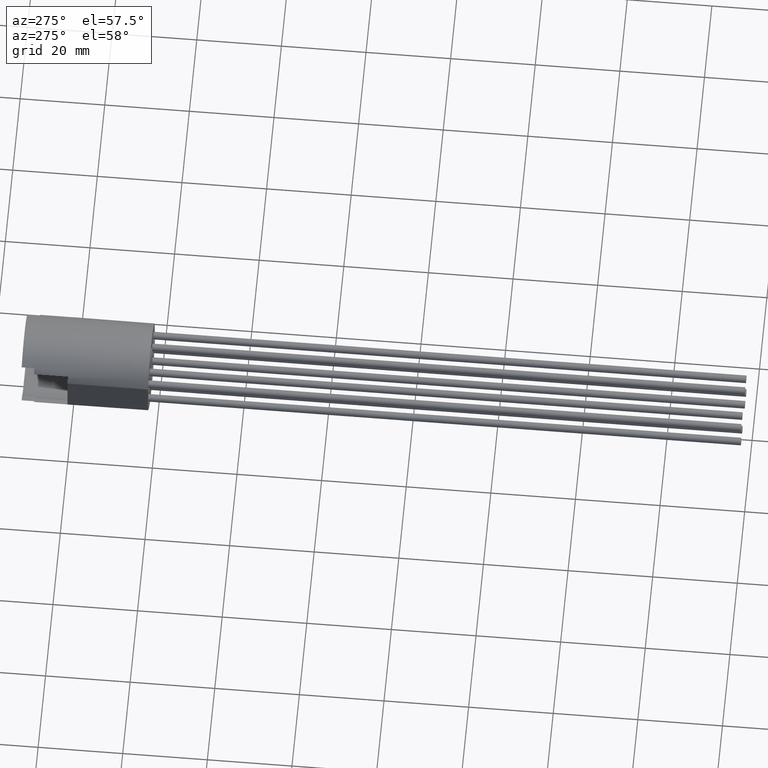
[diagram: clean part render]
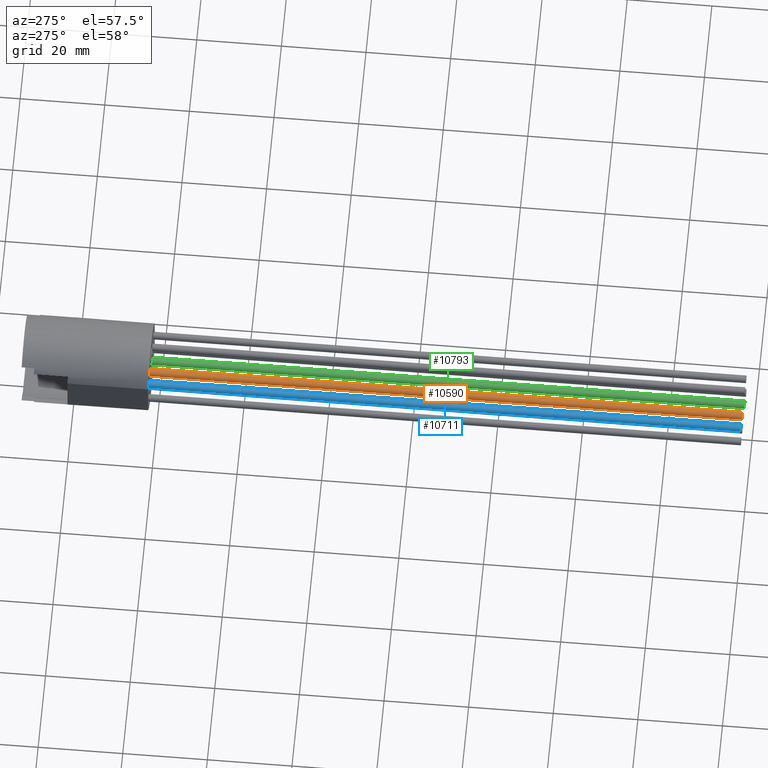
[diagram: same view with three faces highlighted in distinct colors, each labeled with its STEP entity id]
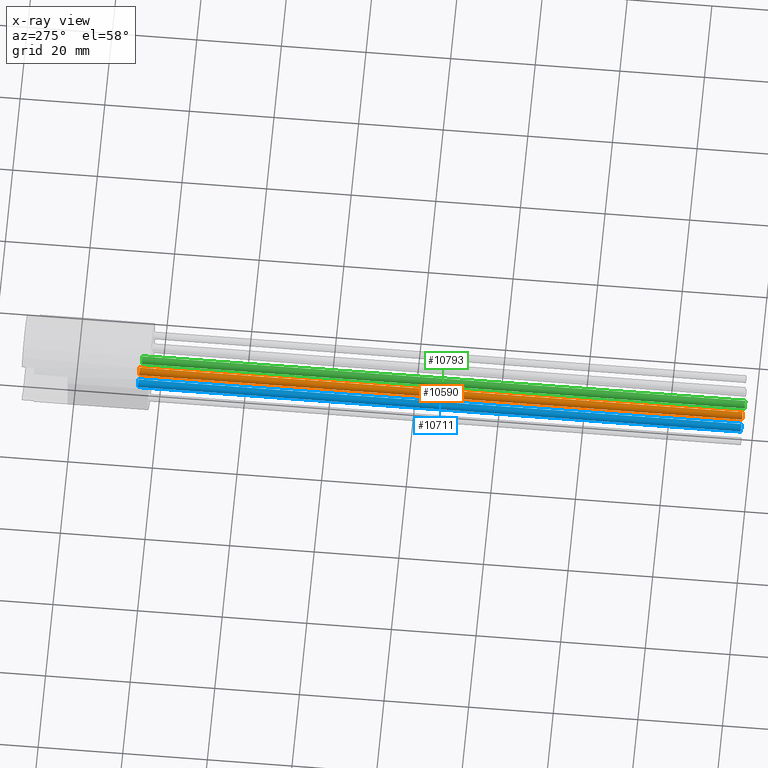
[diagram: x-ray of the same camera — body ghosted, the three highlighted faces saturated]
A machine part, auxiliary view with three faces highlighted in distinct colors.
The next image is the same camera in x-ray (body ghosted, the three faces saturated) — at least one of them is partly hidden behind the body in this view.
Their STEP definitions:

[orange] entity #10590 — the highlighted cylindrical surface (bore or boss wall) has radius 0.9 mm, axis along (0, 1, 0).
#128=CYLINDRICAL_SURFACE('',#11247,0.9);
#293=CIRCLE('',#11240,0.9);
#294=CIRCLE('',#11241,0.9);
#299=CIRCLE('',#11248,0.9);
#300=CIRCLE('',#11249,0.9);
#802=FACE_OUTER_BOUND('',#1372,.T.);
#1372=EDGE_LOOP('',(#8694,#8695,#8696,#8697,#8698,#8699));
#2617=LINE('',#17577,#3809);
#3809=VECTOR('',#13346,0.9);
#4874=VERTEX_POINT('',#17560);
#4875=VERTEX_POINT('',#17562);
#4876=VERTEX_POINT('',#17564);
#4879=VERTEX_POINT('',#17576);
#6232=EDGE_CURVE('',#4875,#4874,#293,.T.);
#6233=EDGE_CURVE('',#4876,#4875,#294,.T.);
#6239=EDGE_CURVE('',#4876,#4874,#299,.T.);
#6240=EDGE_CURVE('',#4875,#4879,#2617,.T.);
#6241=EDGE_CURVE('',#4879,#4879,#300,.T.);
#8694=ORIENTED_EDGE('',*,*,#6232,.T.);
#8695=ORIENTED_EDGE('',*,*,#6239,.F.);
#8696=ORIENTED_EDGE('',*,*,#6233,.T.);
#8697=ORIENTED_EDGE('',*,*,#6240,.T.);
#8698=ORIENTED_EDGE('',*,*,#6241,.F.);
#8699=ORIENTED_EDGE('',*,*,#6240,.F.);
#10590=ADVANCED_FACE('',(#802),#128,.T.);
#11240=AXIS2_PLACEMENT_3D('',#17563,#13327,#13328);
#11241=AXIS2_PLACEMENT_3D('',#17565,#13329,#13330);
#11247=AXIS2_PLACEMENT_3D('',#17574,#13342,#13343);
#11248=AXIS2_PLACEMENT_3D('',#17575,#13344,#13345);
#11249=AXIS2_PLACEMENT_3D('',#17578,#13347,#13348);
#13327=DIRECTION('center_axis',(0.,-1.,0.));
#13328=DIRECTION('ref_axis',(1.,0.,0.));
#13329=DIRECTION('center_axis',(0.,-1.,0.));
#13330=DIRECTION('ref_axis',(1.,0.,0.));
#13342=DIRECTION('center_axis',(0.,1.,0.));
#13343=DIRECTION('ref_axis',(1.,0.,0.));
#13344=DIRECTION('center_axis',(0.,1.,0.));
#13345=DIRECTION('ref_axis',(-0.97746207024387,0.,0.211111111111111));
#13346=DIRECTION('',(0.,-1.,0.));
#13347=DIRECTION('center_axis',(0.,-1.,0.));
#13348=DIRECTION('ref_axis',(1.,0.,0.));
#17560=CARTESIAN_POINT('',(-4.37971586321948,-15.5,2.81));
#17562=CARTESIAN_POINT('',(-4.4,-15.5,3.));
#17563=CARTESIAN_POINT('Origin',(-3.5,-15.5,3.));
#17564=CARTESIAN_POINT('',(-4.37971586321948,-15.5,3.19));
#17565=CARTESIAN_POINT('Origin',(-3.5,-15.5,3.));
#17574=CARTESIAN_POINT('Origin',(-3.5,-158.,3.));
#17575=CARTESIAN_POINT('Origin',(-3.5,-15.5,3.));
#17576=CARTESIAN_POINT('',(-4.4,-158.,3.));
#17577=CARTESIAN_POINT('',(-4.4,-158.,3.));
#17578=CARTESIAN_POINT('Origin',(-3.5,-158.,3.));

[blue] entity #10711 — the highlighted cylindrical surface (bore or boss wall) has radius 0.9 mm, axis along (0, 1, 0).
#160=CYLINDRICAL_SURFACE('',#11442,0.9);
#385=CIRCLE('',#11435,0.9);
#386=CIRCLE('',#11436,0.9);
#391=CIRCLE('',#11443,0.9);
#392=CIRCLE('',#11444,0.9);
#923=FACE_OUTER_BOUND('',#1493,.T.);
#1493=EDGE_LOOP('',(#9312,#9313,#9314,#9315,#9316,#9317));
#2771=LINE('',#18639,#3963);
#3963=VECTOR('',#13890,0.9);
#5015=VERTEX_POINT('',#18622);
#5016=VERTEX_POINT('',#18624);
#5017=VERTEX_POINT('',#18626);
#5020=VERTEX_POINT('',#18638);
#6488=EDGE_CURVE('',#5016,#5015,#385,.T.);
#6489=EDGE_CURVE('',#5017,#5016,#386,.T.);
#6495=EDGE_CURVE('',#5017,#5015,#391,.T.);
#6496=EDGE_CURVE('',#5016,#5020,#2771,.T.);
#6497=EDGE_CURVE('',#5020,#5020,#392,.T.);
#9312=ORIENTED_EDGE('',*,*,#6488,.T.);
#9313=ORIENTED_EDGE('',*,*,#6495,.F.);
#9314=ORIENTED_EDGE('',*,*,#6489,.T.);
#9315=ORIENTED_EDGE('',*,*,#6496,.T.);
#9316=ORIENTED_EDGE('',*,*,#6497,.F.);
#9317=ORIENTED_EDGE('',*,*,#6496,.F.);
#10711=ADVANCED_FACE('',(#923),#160,.T.);
#11435=AXIS2_PLACEMENT_3D('',#18625,#13871,#13872);
#11436=AXIS2_PLACEMENT_3D('',#18627,#13873,#13874);
#11442=AXIS2_PLACEMENT_3D('',#18636,#13886,#13887);
#11443=AXIS2_PLACEMENT_3D('',#18637,#13888,#13889);
#11444=AXIS2_PLACEMENT_3D('',#18640,#13891,#13892);
#13871=DIRECTION('center_axis',(0.,-1.,0.));
#13872=DIRECTION('ref_axis',(1.,0.,0.));
#13873=DIRECTION('center_axis',(0.,-1.,0.));
#13874=DIRECTION('ref_axis',(1.,0.,0.));
#13886=DIRECTION('center_axis',(0.,1.,0.));
#13887=DIRECTION('ref_axis',(1.,0.,0.));
#13888=DIRECTION('center_axis',(0.,1.,0.));
#13889=DIRECTION('ref_axis',(-0.97746207024387,0.,0.211111111111111));
#13890=DIRECTION('',(0.,-1.,0.));
#13891=DIRECTION('center_axis',(0.,-1.,0.));
#13892=DIRECTION('ref_axis',(1.,0.,0.));
#18622=CARTESIAN_POINT('',(-7.67971586321948,-15.5,2.81));
#18624=CARTESIAN_POINT('',(-7.7,-15.5,3.));
#18625=CARTESIAN_POINT('Origin',(-6.8,-15.5,3.));
#18626=CARTESIAN_POINT('',(-7.67971586321948,-15.5,3.19));
#18627=CARTESIAN_POINT('Origin',(-6.8,-15.5,3.));
#18636=CARTESIAN_POINT('Origin',(-6.8,-158.,3.));
#18637=CARTESIAN_POINT('Origin',(-6.8,-15.5,3.));
#18638=CARTESIAN_POINT('',(-7.7,-158.,3.));
#18639=CARTESIAN_POINT('',(-7.7,-158.,3.));
#18640=CARTESIAN_POINT('Origin',(-6.8,-158.,3.));

[green] entity #10793 — the highlighted cylindrical surface (bore or boss wall) has radius 0.9 mm, axis along (0, 1, 0).
#182=CYLINDRICAL_SURFACE('',#11574,0.9);
#447=CIRCLE('',#11567,0.9);
#453=CIRCLE('',#11575,0.9);
#454=CIRCLE('',#11576,0.9);
#455=CIRCLE('',#11577,0.9);
#1005=FACE_OUTER_BOUND('',#1575,.T.);
#1575=EDGE_LOOP('',(#9732,#9733,#9734,#9735,#9736,#9737));
#2877=LINE('',#19371,#4069);
#4069=VECTOR('',#14262,0.9);
#5113=VERTEX_POINT('',#19352);
#5114=VERTEX_POINT('',#19354);
#5118=VERTEX_POINT('',#19367);
#5119=VERTEX_POINT('',#19370);
#6664=EDGE_CURVE('',#5114,#5113,#447,.T.);
#6671=EDGE_CURVE('',#5114,#5118,#453,.T.);
#6672=EDGE_CURVE('',#5118,#5113,#454,.T.);
#6673=EDGE_CURVE('',#5118,#5119,#2877,.T.);
#6674=EDGE_CURVE('',#5119,#5119,#455,.T.);
#9732=ORIENTED_EDGE('',*,*,#6671,.F.);
#9733=ORIENTED_EDGE('',*,*,#6664,.T.);
#9734=ORIENTED_EDGE('',*,*,#6672,.F.);
#9735=ORIENTED_EDGE('',*,*,#6673,.T.);
#9736=ORIENTED_EDGE('',*,*,#6674,.F.);
#9737=ORIENTED_EDGE('',*,*,#6673,.F.);
#10793=ADVANCED_FACE('',(#1005),#182,.T.);
#11567=AXIS2_PLACEMENT_3D('',#19355,#14241,#14242);
#11574=AXIS2_PLACEMENT_3D('',#19366,#14256,#14257);
#11575=AXIS2_PLACEMENT_3D('',#19368,#14258,#14259);
#11576=AXIS2_PLACEMENT_3D('',#19369,#14260,#14261);
#11577=AXIS2_PLACEMENT_3D('',#19372,#14263,#14264);
#14241=DIRECTION('center_axis',(-2.7616661442375E-80,-1.,-2.80648516221832E-32));
#14242=DIRECTION('ref_axis',(1.,0.,-9.84030195995978E-49));
#14256=DIRECTION('center_axis',(2.7616661442375E-80,1.,2.80648516221832E-32));
#14257=DIRECTION('ref_axis',(1.,0.,-9.84030195995978E-49));
#14258=DIRECTION('center_axis',(-3.50627257625754E-17,1.,2.80648516221832E-32));
#14259=DIRECTION('ref_axis',(0.97746207024387,3.427248451228E-17,-0.211111111111111));
#14260=DIRECTION('center_axis',(-3.50627257625754E-17,1.,2.80648516221832E-32));
#14261=DIRECTION('ref_axis',(0.97746207024387,3.427248451228E-17,-0.211111111111111));
#14262=DIRECTION('',(-2.7616661442375E-80,-1.,-2.80648516221832E-32));
#14263=DIRECTION('center_axis',(-2.7616661442375E-80,-1.,-2.80648516221832E-32));
#14264=DIRECTION('ref_axis',(1.,0.,-9.84030195995978E-49));
#19352=CARTESIAN_POINT('',(4.37971586321949,-15.5,-2.80999999999999));
#19354=CARTESIAN_POINT('',(4.37971586321949,-15.5,-3.18999999999999));
#19355=CARTESIAN_POINT('Origin',(3.50000000000001,-15.5,-2.99999999999999));
#19366=CARTESIAN_POINT('Origin',(3.50000000000001,-158.,-2.99999999999999));
#19367=CARTESIAN_POINT('',(2.60000000000001,-15.5,-2.99999999999999));
#19368=CARTESIAN_POINT('Origin',(3.5,-15.5,-2.99999999999999));
#19369=CARTESIAN_POINT('Origin',(3.5,-15.5,-2.99999999999999));
#19370=CARTESIAN_POINT('',(2.60000000000001,-158.,-2.99999999999999));
#19371=CARTESIAN_POINT('',(2.60000000000001,-158.,-2.99999999999999));
#19372=CARTESIAN_POINT('Origin',(3.50000000000001,-158.,-2.99999999999999));